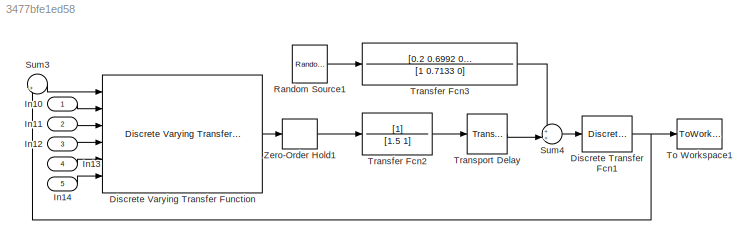
MODEL slx_3477bfe1ed58
KIND model
CONFIG AbsTol = auto
CONFIG EnableMultiTasking = off
CONFIG FixedStep = auto
CONFIG MaxStep = auto
CONFIG MinStep = auto
CONFIG RelTol = 1e-3
CONFIG SampleTimeConstraint = Unconstrained
CONFIG SolverName = VariableStepAuto
CONFIG StartTime = 0.0
CONFIG StopTime = 20000
BLOCK [DiscreteTransferFcn] Discrete Transfer Fcn1
  Denominator = [1]
  InputPortMap = u0
  Ports = [1, 1]
  SampleTime = Ts
BLOCK [Reference] Discrete Varying Transfer Function  REF=cstblocks/Linear Parameter Varying/Discrete Varying Transfer Function
  Ports = [6, 1]
  SourceBlock = cstblocks/Linear Parameter Varying/Discrete Varying Transfer Function
  SourceProductBaseCode = CT
  SourceType = Discrete Varying Transfer Function
BLOCK [Inport] In10
BLOCK [Inport] In11
  Port = 2
BLOCK [Inport] In12
  Port = 3
BLOCK [Inport] In13
  Port = 4
BLOCK [Inport] In14
  Port = 5
BLOCK [Reference] Random Source1  REF=dspsrcs4/Random
Source
  Ports = [0, 1]
  SourceBlock = dspsrcs4/Random\nSource
  SourceProductBaseCode = DS
  SourceType = Random Source
  UserDataPersistent = on
BLOCK [Sum] Sum3
  Inputs = |+-
  Ports = [2, 1]
BLOCK [Sum] Sum4
  Inputs = ++|
  Ports = [2, 1]
BLOCK [ToWorkspace] To Workspace1
  FixptAsFi = on
  MaxDataPoints = inf
  Ports = [1]
  SampleTime = Ts
  VariableName = y11
BLOCK [TransferFcn] Transfer Fcn2
  Denominator = [1.5 1]
BLOCK [TransferFcn] Transfer Fcn3
  Denominator = [1 0.7133 0]
  Numerator = [0.2 0.6992 0.9512]
BLOCK [TransportDelay] Transport Delay
  DelayTime = 5
  Ports = [1, 1]
BLOCK [ZeroOrderHold] Zero-Order Hold1
  SampleTime = Ts
NET Discrete Transfer Fcn1:1 -> Sum3:2, To Workspace1:1
LINE Discrete Varying Transfer Function:1 -> Zero-Order Hold1:1
LINE In10:1 -> Discrete Varying Transfer Function:2
LINE In11:1 -> Discrete Varying Transfer Function:3
LINE In12:1 -> Discrete Varying Transfer Function:4
LINE In13:1 -> Discrete Varying Transfer Function:5
LINE In14:1 -> Discrete Varying Transfer Function:6
LINE Random Source1:1 -> Transfer Fcn3:1
LINE Sum3:1 -> Discrete Varying Transfer Function:1
LINE Sum4:1 -> Discrete Transfer Fcn1:1
LINE Transfer Fcn2:1 -> Transport Delay:1
LINE Transfer Fcn3:1 -> Sum4:1
LINE Transport Delay:1 -> Sum4:2
LINE Zero-Order Hold1:1 -> Transfer Fcn2:1
note: NET lines group one-source signal fan-out (src -> all destinations, sorted); 1:1 wires keep LINE
